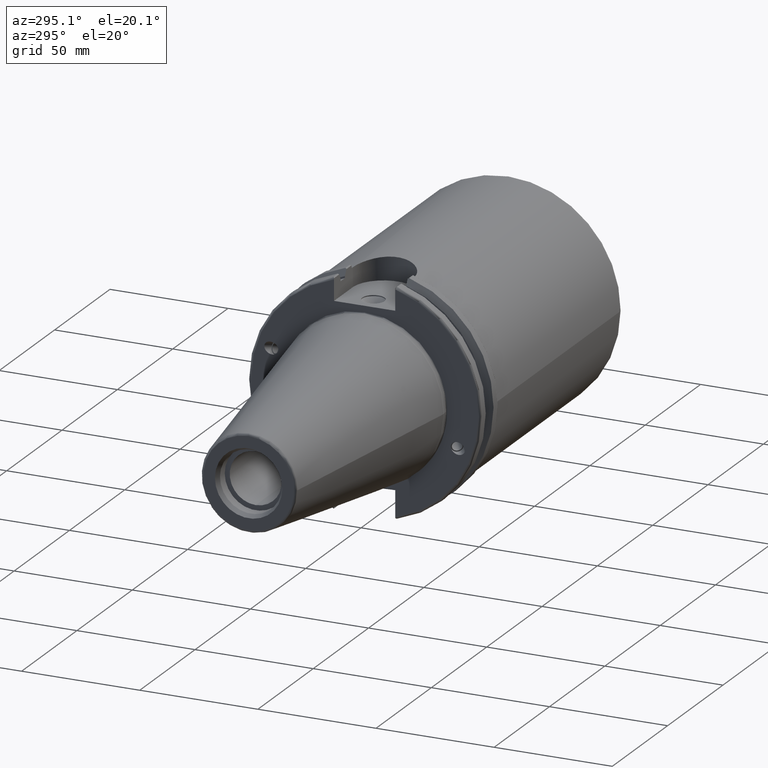
[diagram: clean part render]
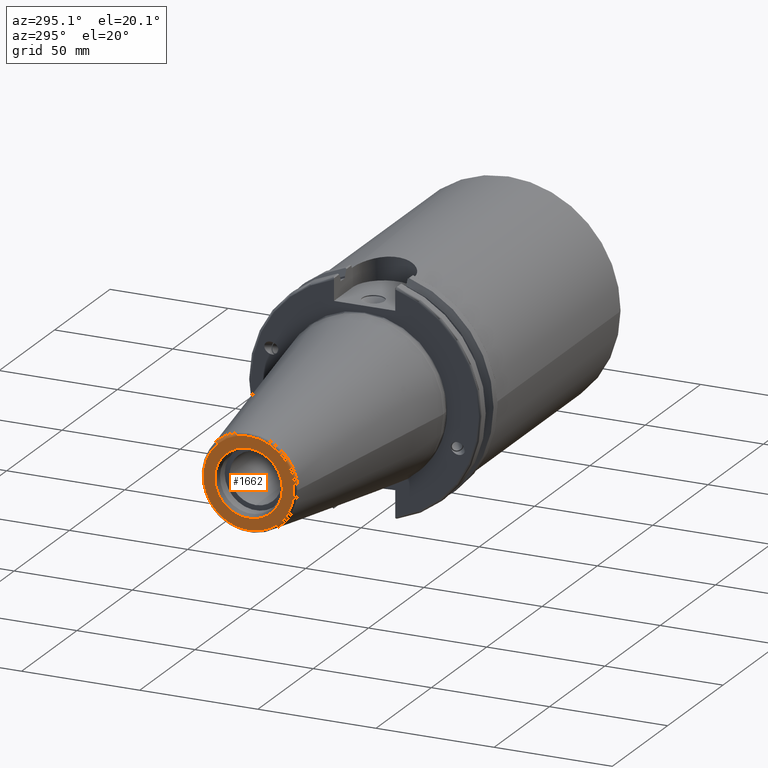
[diagram: same view with one face highlighted and labeled with its STEP entity id]
A machine part, auxiliary view. The second image highlights one B-rep face of the part: STEP entity #1662.
In plain terms, the highlighted planar face has unit normal (-1, 0, 0).
Its self-contained STEP definition (entity closure, byte-faithful):
#57=PLANE('',#1854);
#103=FACE_BOUND('',#493,.T.);
#383=FACE_OUTER_BOUND('',#492,.T.);
#492=EDGE_LOOP('',(#1465));
#493=EDGE_LOOP('',(#1466));
#596=CIRCLE('',#1853,19.2435889303637);
#597=CIRCLE('',#1855,14.2875);
#822=VERTEX_POINT('',#3508);
#823=VERTEX_POINT('',#3512);
#1054=EDGE_CURVE('',#822,#822,#596,.T.);
#1055=EDGE_CURVE('',#823,#823,#597,.T.);
#1465=ORIENTED_EDGE('',*,*,#1054,.F.);
#1466=ORIENTED_EDGE('',*,*,#1055,.T.);
#1662=ADVANCED_FACE('',(#383,#103),#57,.T.);
#1853=AXIS2_PLACEMENT_3D('',#3510,#2257,#2258);
#1854=AXIS2_PLACEMENT_3D('',#3511,#2259,#2260);
#1855=AXIS2_PLACEMENT_3D('',#3513,#2261,#2262);
#2257=DIRECTION('center_axis',(1.,0.,0.));
#2258=DIRECTION('ref_axis',(0.,-1.,1.83697019872103E-16));
#2259=DIRECTION('center_axis',(-1.,0.,0.));
#2260=DIRECTION('ref_axis',(0.,0.,1.));
#2261=DIRECTION('center_axis',(1.,0.,0.));
#2262=DIRECTION('ref_axis',(0.,0.,-1.));
#3508=CARTESIAN_POINT('',(-101.6,-2.35665995876774E-15,19.2435889303637));
#3510=CARTESIAN_POINT('Origin',(-101.6,0.,0.));
#3511=CARTESIAN_POINT('Origin',(-101.6,20.1083333333333,0.));
#3512=CARTESIAN_POINT('',(-101.6,-14.2875,-1.74971411428178E-15));
#3513=CARTESIAN_POINT('Origin',(-101.6,0.,0.));